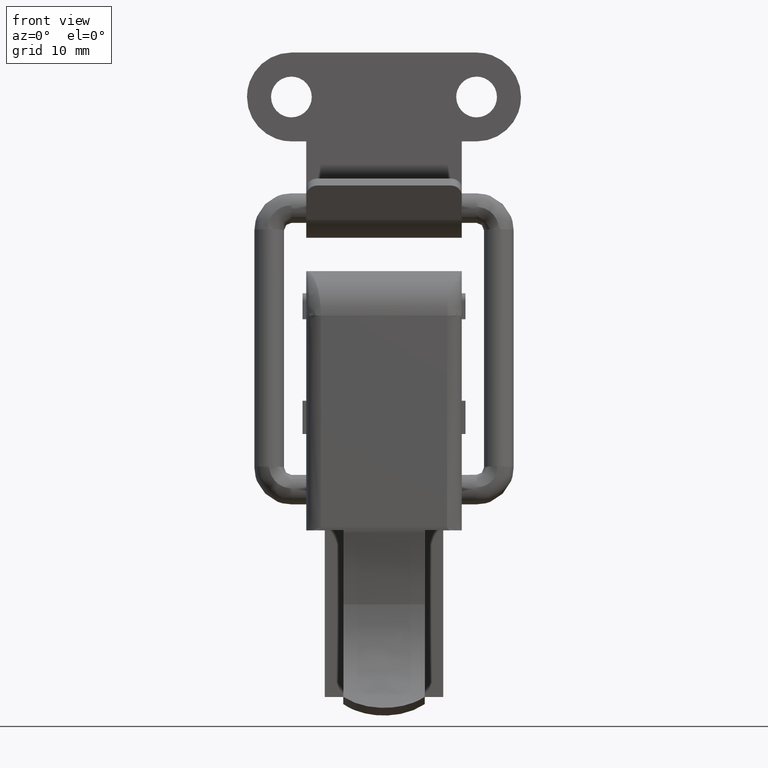
[diagram: clean part render]
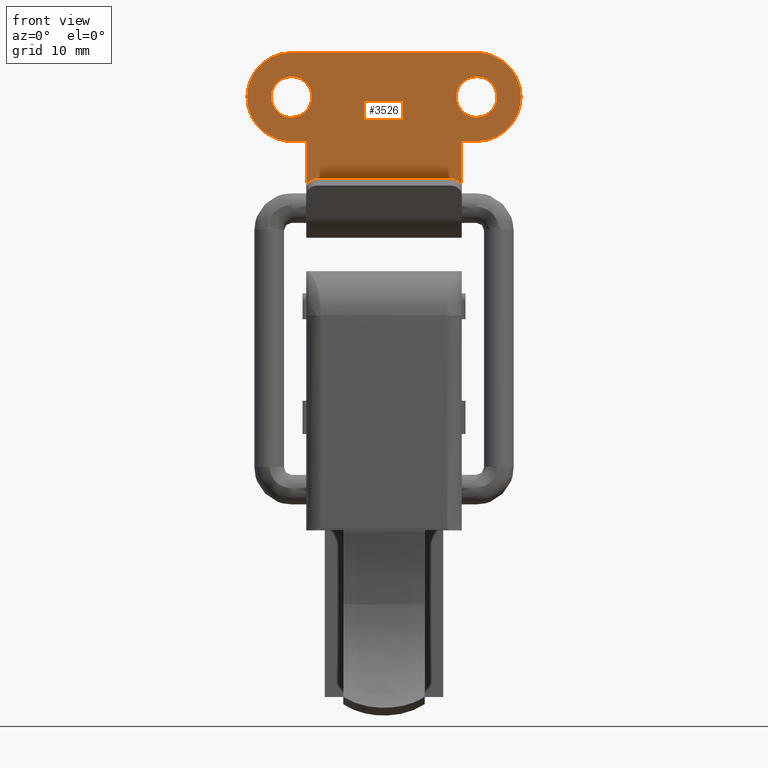
[diagram: same view with one face highlighted and labeled with its STEP entity id]
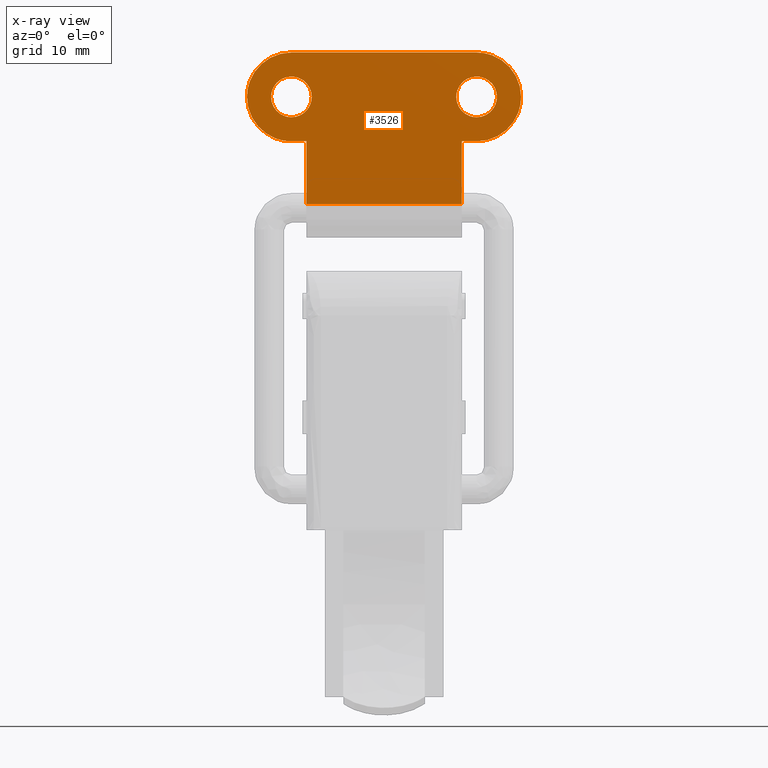
[diagram: x-ray of the same camera — body ghosted, the highlighted face saturated]
A machine part, front view. The second image highlights one B-rep face of the part: STEP entity #3526.
The next image is the same camera in x-ray: the body ghosted, the highlighted face saturated — about 0% of this face is hidden behind the body in this view.
In plain terms, the highlighted face is a freeform B-spline surface patch.
Its self-contained STEP definition (entity closure, byte-faithful):
#2579=CARTESIAN_POINT('',(-14.527512917801120,5.500000000000000,49.142126764848648));
#2580=VERTEX_POINT('',#2579);
#2586=CARTESIAN_POINT('',(-12.500000000000000,5.500000000000000,48.249999999999993));
#2587=VERTEX_POINT('',#2586);
#2588=CARTESIAN_POINT('',(-14.527512917801120,5.500000000000000,49.142126764848648));
#2589=CARTESIAN_POINT('',(-14.375130996242721,5.500000000000018,48.975748198565512));
#2590=CARTESIAN_POINT('',(-14.047312331889369,5.499999999999973,48.696398165860913));
#2591=CARTESIAN_POINT('',(-13.366648295754450,5.500000000000021,48.348115293545838));
#2592=CARTESIAN_POINT('',(-12.832520045756761,5.500000000000004,48.249745312623403));
#2593=CARTESIAN_POINT('',(-12.500000000000000,5.500000000000000,48.249999999999993));
#2594=B_SPLINE_CURVE_WITH_KNOTS('',3,(#2588,#2589,#2590,#2591,#2592,#2593),.UNSPECIFIED.,.F.,.U.,(4,1,1,4),(0.000000032338884,0.676834102682481,1.282406348102786,2.279852435851038),.UNSPECIFIED.);
#2595=EDGE_CURVE('',#2580,#2587,#2594,.T.);
#2597=CARTESIAN_POINT('',(-9.750000000000247,5.500000000000000,51.000001160592653));
#2598=VERTEX_POINT('',#2597);
#2599=CARTESIAN_POINT('',(-12.500000000000000,5.500000000000000,48.249999999999993));
#2600=CARTESIAN_POINT('',(-12.263760865652371,5.500000000000005,48.249929813844417));
#2601=CARTESIAN_POINT('',(-11.802574202319789,5.499999999999975,48.309800825223718));
#2602=CARTESIAN_POINT('',(-11.213223315270840,5.500000000000008,48.545448761982129));
#2603=CARTESIAN_POINT('',(-10.773605108640210,5.499999999999986,48.843197506705451));
#2604=CARTESIAN_POINT('',(-10.430522967274360,5.500000000000023,49.169868266171733));
#2605=CARTESIAN_POINT('',(-10.070715670069250,5.499999999999942,49.648488886146389));
#2606=CARTESIAN_POINT('',(-9.809212095584636,5.500000000000107,50.280025338683153));
#2607=CARTESIAN_POINT('',(-9.749977008975430,5.499999999999909,50.786274796589808));
#2608=CARTESIAN_POINT('',(-9.750000000000247,5.500000000000000,51.000001160592653));
#2609=B_SPLINE_CURVE_WITH_KNOTS('',3,(#2599,#2600,#2601,#2602,#2603,#2604,#2605,#2606,#2607,#2608),.UNSPECIFIED.,.F.,.U.,(4,1,1,1,1,1,1,4),(0.000000109474842,0.708702184831479,1.383669421282279,1.889900809667432,2.294832776649656,2.801058701926042,3.678517842865843,4.319717657050357),.UNSPECIFIED.);
#2610=EDGE_CURVE('',#2587,#2598,#2609,.T.);
#2612=CARTESIAN_POINT('',(-12.500000000000000,5.500000000000000,53.750000000000000));
#2613=VERTEX_POINT('',#2612);
#2614=CARTESIAN_POINT('',(-9.750000000000247,5.500000000000000,51.000001160592653));
#2615=CARTESIAN_POINT('',(-9.749821389689416,5.500000000000004,51.303749990752650));
#2616=CARTESIAN_POINT('',(-9.838505409443988,5.499999999999995,51.832340491173937));
#2617=CARTESIAN_POINT('',(-10.161688349722340,5.500000000000010,52.494388369362113));
#2618=CARTESIAN_POINT('',(-10.606810752612180,5.499999999999994,53.036874320589241));
#2619=CARTESIAN_POINT('',(-11.178190542751009,5.500000000000008,53.449910658039279));
#2620=CARTESIAN_POINT('',(-11.847563435212360,5.500000000000000,53.698605966728472));
#2621=CARTESIAN_POINT('',(-12.286266147149030,5.500000000000010,53.750037625554299));
#2622=CARTESIAN_POINT('',(-12.500000000000000,5.500000000000000,53.750000000000000));
#2623=B_SPLINE_CURVE_WITH_KNOTS('',3,(#2614,#2615,#2616,#2617,#2618,#2619,#2620,#2621,#2622),.UNSPECIFIED.,.F.,.U.,(4,1,1,1,1,1,4),(0.000000109877820,0.911186957502792,1.586156166553327,2.193572490104816,3.003545808103378,3.678516728095198,4.319716348783726),.UNSPECIFIED.);
#2624=EDGE_CURVE('',#2598,#2613,#2623,.T.);
#2626=CARTESIAN_POINT('',(-14.470789898943719,5.500000000000000,52.917937845446460));
#2627=VERTEX_POINT('',#2626);
#2628=CARTESIAN_POINT('',(-12.500000000000000,5.500000000000000,53.750000000000000));
#2629=CARTESIAN_POINT('',(-12.854843145610420,5.500000000000009,53.750393653483343));
#2630=CARTESIAN_POINT('',(-13.335183950624200,5.499999999999990,53.655672380627067));
#2631=CARTESIAN_POINT('',(-13.994413779836879,5.500000000000008,53.332523950711909));
#2632=CARTESIAN_POINT('',(-14.295251336792600,5.500000000000002,53.098434906660401));
#2633=CARTESIAN_POINT('',(-14.470789898943719,5.500000000000000,52.917937845446460));
#2634=B_SPLINE_CURVE_WITH_KNOTS('',3,(#2628,#2629,#2630,#2631,#2632,#2633),.UNSPECIFIED.,.F.,.U.,(4,1,1,4),(0.000000030338377,1.064302019140661,1.441927682589858,2.197232301084928),.UNSPECIFIED.);
#2635=EDGE_CURVE('',#2613,#2627,#2634,.T.);
#2671=CARTESIAN_POINT('',(-15.249999999999760,5.500000000000000,50.999998839407347));
#2672=VERTEX_POINT('',#2671);
#2673=CARTESIAN_POINT('',(-14.470789898943719,5.500000000000000,52.917937845446460));
#2674=CARTESIAN_POINT('',(-14.702295116580229,5.499999999999976,52.680428711014713));
#2675=CARTESIAN_POINT('',(-15.021182805663679,5.500000000000048,52.204328921219812));
#2676=CARTESIAN_POINT('',(-15.220513018024761,5.499999999999951,51.519565782778344));
#2677=CARTESIAN_POINT('',(-15.249999248027500,5.500000000000031,51.143705450220423));
#2678=CARTESIAN_POINT('',(-15.249999999999760,5.500000000000000,50.999998839407347));
#2679=B_SPLINE_CURVE_WITH_KNOTS('',3,(#2673,#2674,#2675,#2676,#2677,#2678),.UNSPECIFIED.,.F.,.U.,(4,1,1,4),(0.000000025531207,0.994918800908036,1.691357002327286,2.122485658950646),.UNSPECIFIED.);
#2680=EDGE_CURVE('',#2627,#2672,#2679,.T.);
#2682=CARTESIAN_POINT('',(-15.249999999999760,5.500000000000000,50.999998839407347));
#2683=CARTESIAN_POINT('',(-15.250077596933830,5.499999999999993,50.766255101851968));
#2684=CARTESIAN_POINT('',(-15.203637673173620,5.500000000000006,50.405080142435899));
#2685=CARTESIAN_POINT('',(-14.986357654460130,5.499999999999991,49.759020388249922));
#2686=CARTESIAN_POINT('',(-14.743058120672231,5.500000000000004,49.376979510662807));
#2687=CARTESIAN_POINT('',(-14.527512917801120,5.500000000000000,49.142126764848648));
#2688=B_SPLINE_CURVE_WITH_KNOTS('',3,(#2682,#2683,#2684,#2685,#2686,#2687),.UNSPECIFIED.,.F.,.U.,(4,1,1,4),(0.000000012313139,0.701215178813573,1.083695605518462,2.039898126882537),.UNSPECIFIED.);
#2689=EDGE_CURVE('',#2672,#2580,#2688,.T.);
#2783=CARTESIAN_POINT('',(10.472487082198880,5.500000000000000,49.142126764848648));
#2784=VERTEX_POINT('',#2783);
#2790=CARTESIAN_POINT('',(12.500000000000000,5.500000000000000,48.249999999999993));
#2791=VERTEX_POINT('',#2790);
#2792=CARTESIAN_POINT('',(10.472487082198880,5.500000000000000,49.142126764848648));
#2793=CARTESIAN_POINT('',(10.600827033760250,5.499999999999998,49.002044401993487));
#2794=CARTESIAN_POINT('',(10.922390173185461,5.500000000000004,48.716906230337443));
#2795=CARTESIAN_POINT('',(11.597722497528119,5.499999999999993,48.354682719093127));
#2796=CARTESIAN_POINT('',(12.167481631216299,5.500000000000006,48.249713538234211));
#2797=CARTESIAN_POINT('',(12.500000000000000,5.500000000000000,48.249999999999993));
#2798=B_SPLINE_CURVE_WITH_KNOTS('',3,(#2792,#2793,#2794,#2795,#2796,#2797),.UNSPECIFIED.,.F.,.U.,(4,1,1,4),(0.000000032334484,0.569963133213006,1.282406348101520,2.279852435851014),.UNSPECIFIED.);
#2799=EDGE_CURVE('',#2784,#2791,#2798,.T.);
#2801=CARTESIAN_POINT('',(15.249999999999760,5.500000000000000,51.000001160592653));
#2802=VERTEX_POINT('',#2801);
#2803=CARTESIAN_POINT('',(12.500000000000000,5.500000000000000,48.249999999999993));
#2804=CARTESIAN_POINT('',(12.736231067694730,5.500000000000005,48.249947203015843));
#2805=CARTESIAN_POINT('',(13.264957693043501,5.500000000000004,48.318470622534562));
#2806=CARTESIAN_POINT('',(13.941958999813790,5.499999999999990,48.618466834709373));
#2807=CARTESIAN_POINT('',(14.449309252367890,5.500000000000008,49.035087551747772));
#2808=CARTESIAN_POINT('',(14.814612808962110,5.499999999999989,49.480190596621071));
#2809=CARTESIAN_POINT('',(15.147239305305600,5.500000000000008,50.111481426391620));
#2810=CARTESIAN_POINT('',(15.250266822537951,5.499999999999980,50.662487356336591));
#2811=CARTESIAN_POINT('',(15.249999999999760,5.500000000000000,51.000001160592653));
#2812=B_SPLINE_CURVE_WITH_KNOTS('',3,(#2803,#2804,#2805,#2806,#2807,#2808,#2809,#2810,#2811),.UNSPECIFIED.,.F.,.U.,(4,1,1,1,1,1,4),(0.000000109475097,0.708702184831283,1.586156646996663,2.193573154702530,2.666071832463320,3.307284449500914,4.319717657050314),.UNSPECIFIED.);
#2813=EDGE_CURVE('',#2791,#2802,#2812,.T.);
#2815=CARTESIAN_POINT('',(12.500000000000000,5.500000000000000,53.750000000000000));
#2816=VERTEX_POINT('',#2815);
#2817=CARTESIAN_POINT('',(15.249999999999760,5.500000000000000,51.000001160592653));
#2818=CARTESIAN_POINT('',(15.250035787560901,5.499999999999981,51.202484159990142));
#2819=CARTESIAN_POINT('',(15.205068789438680,5.500000000000030,51.607439367656738));
#2820=CARTESIAN_POINT('',(14.998942553464870,5.499999999999994,52.206802764923452));
#2821=CARTESIAN_POINT('',(14.671476357462870,5.500000000000002,52.723878317214258));
#2822=CARTESIAN_POINT('',(14.279802402862961,5.500000000000005,53.115494617835168));
#2823=CARTESIAN_POINT('',(13.844300450076741,5.500000000000000,53.418244757618922));
#2824=CARTESIAN_POINT('',(13.264878483521301,5.500000000000000,53.675125035647717));
#2825=CARTESIAN_POINT('',(12.781242929662280,5.500000000000000,53.750144591192502));
#2826=CARTESIAN_POINT('',(12.500000000000000,5.500000000000000,53.750000000000000));
#2827=B_SPLINE_CURVE_WITH_KNOTS('',3,(#2817,#2818,#2819,#2820,#2821,#2822,#2823,#2824,#2825,#2826),.UNSPECIFIED.,.F.,.U.,(4,1,1,1,1,1,1,4),(0.000000109872646,0.607445062422898,1.214921012819016,1.889900237344748,2.429817145090465,2.868553034575553,3.476028772776433,4.319716348783728),.UNSPECIFIED.);
#2828=EDGE_CURVE('',#2802,#2816,#2827,.T.);
#2830=CARTESIAN_POINT('',(10.529210101056281,5.500000000000000,52.917937845446460));
#2831=VERTEX_POINT('',#2830);
#2832=CARTESIAN_POINT('',(12.500000000000000,5.500000000000000,53.750000000000000));
#2833=CARTESIAN_POINT('',(12.202430644841860,5.499999999999998,53.750180476575821));
#2834=CARTESIAN_POINT('',(11.721921938927810,5.500000000000008,53.671186647989387));
#2835=CARTESIAN_POINT('',(11.051166931006410,5.500000000000005,53.368029296785608));
#2836=CARTESIAN_POINT('',(10.704745001365261,5.499999999999987,53.098431243342013));
#2837=CARTESIAN_POINT('',(10.529210101056281,5.500000000000000,52.917937845446460));
#2838=B_SPLINE_CURVE_WITH_KNOTS('',3,(#2832,#2833,#2834,#2835,#2836,#2837),.UNSPECIFIED.,.F.,.U.,(4,1,1,4),(0.000000030336549,0.892632922976256,1.441927682589269,2.197232301084927),.UNSPECIFIED.);
#2839=EDGE_CURVE('',#2816,#2831,#2838,.T.);
#2875=CARTESIAN_POINT('',(9.750000000000247,5.500000000000000,50.999998839407347));
#2876=VERTEX_POINT('',#2875);
#2877=CARTESIAN_POINT('',(10.529210101056281,5.500000000000000,52.917937845446460));
#2878=CARTESIAN_POINT('',(10.328605957656039,5.500000000000005,52.712059652862777));
#2879=CARTESIAN_POINT('',(10.083513375903021,5.500000000000000,52.364596754411807));
#2880=CARTESIAN_POINT('',(9.816473324431719,5.499999999999998,51.707407789209107));
#2881=CARTESIAN_POINT('',(9.749848559639460,5.500000000000011,51.287442715384579));
#2882=CARTESIAN_POINT('',(9.750000000000247,5.500000000000000,50.999998839407347));
#2883=B_SPLINE_CURVE_WITH_KNOTS('',3,(#2877,#2878,#2879,#2880,#2881,#2882),.UNSPECIFIED.,.F.,.U.,(4,1,1,4),(0.000000025537297,0.862266357924242,1.260219326527878,2.122485658950634),.UNSPECIFIED.);
#2884=EDGE_CURVE('',#2831,#2876,#2883,.T.);
#2886=CARTESIAN_POINT('',(9.750000000000247,5.500000000000000,50.999998839407347));
#2887=CARTESIAN_POINT('',(9.749744281488843,5.499999999999999,50.681225709945451));
#2888=CARTESIAN_POINT('',(9.828478302601761,5.500000000000005,50.235188972073537));
#2889=CARTESIAN_POINT('',(10.104737353675670,5.499999999999988,49.612062717463267));
#2890=CARTESIAN_POINT('',(10.314526766582929,5.500000000000020,49.314415987807017));
#2891=CARTESIAN_POINT('',(10.472487082198880,5.500000000000000,49.142126764848648));
#2892=B_SPLINE_CURVE_WITH_KNOTS('',3,(#2886,#2887,#2888,#2889,#2890,#2891),.UNSPECIFIED.,.F.,.U.,(4,1,1,4),(0.000000012313508,0.956202533643367,1.338682960367918,2.039898126882518),.UNSPECIFIED.);
#2893=EDGE_CURVE('',#2876,#2784,#2892,.T.);
#3042=CARTESIAN_POINT('',(-10.500000000000000,5.500000000000200,36.500000000000000));
#3043=VERTEX_POINT('',#3042);
#3062=CARTESIAN_POINT('',(-10.500000000000000,5.500000000000090,45.0));
#3063=VERTEX_POINT('',#3062);
#3064=CARTESIAN_POINT('',(-10.500000000000000,5.500000000000200,36.500000000000000));
#3065=CARTESIAN_POINT('',(-10.500000000000000,5.500000000000090,45.0));
#3066=QUASI_UNIFORM_CURVE('',1,(#3064,#3065),.UNSPECIFIED.,.F.,.U.);
#3067=EDGE_CURVE('',#3043,#3063,#3066,.T.);
#3155=CARTESIAN_POINT('',(10.500000000000000,5.500000000000090,45.0));
#3156=VERTEX_POINT('',#3155);
#3162=CARTESIAN_POINT('',(10.500000000000000,5.500000000000200,36.500000000000000));
#3163=VERTEX_POINT('',#3162);
#3164=CARTESIAN_POINT('',(10.500000000000000,5.500000000000200,36.500000000000000));
#3165=CARTESIAN_POINT('',(10.500000000000000,5.500000000000090,45.0));
#3166=QUASI_UNIFORM_CURVE('',1,(#3164,#3165),.UNSPECIFIED.,.F.,.U.);
#3167=EDGE_CURVE('',#3163,#3156,#3166,.T.);
#3215=CARTESIAN_POINT('',(10.500000000000000,5.500000000000200,36.500000000000000));
#3216=CARTESIAN_POINT('',(-10.500000000000000,5.500000000000200,36.500000000000000));
#3217=QUASI_UNIFORM_CURVE('',1,(#3215,#3216),.UNSPECIFIED.,.F.,.U.);
#3218=EDGE_CURVE('',#3163,#3043,#3217,.T.);
#3415=CARTESIAN_POINT('',(-20.348149928286588,5.500000000000090,58.023974960267033));
#3416=CARTESIAN_POINT('',(20.348150920703919,5.500000000000090,58.023974960267033));
#3417=CARTESIAN_POINT('',(-20.348149928286588,5.500000000000090,35.476024489880132));
#3418=CARTESIAN_POINT('',(20.348150920703919,5.500000000000090,35.476024489880132));
#3419=B_SPLINE_SURFACE_WITH_KNOTS('',1,1,((#3415,#3417),(#3416,#3418)),.UNSPECIFIED.,.F.,.F.,.U.,(2,2),(2,2),(0.0,40.696300848990511),(0.0,22.547950470386901),.UNSPECIFIED.);
#3420=CARTESIAN_POINT('',(-12.500000000000000,5.500000000000000,57.0));
#3421=VERTEX_POINT('',#3420);
#3422=CARTESIAN_POINT('',(12.500000000000000,5.500000000000000,57.0));
#3423=VERTEX_POINT('',#3422);
#3424=CARTESIAN_POINT('',(-12.500000000000000,5.500000000000000,57.0));
#3425=CARTESIAN_POINT('',(12.500000000000000,5.500000000000000,57.0));
#3426=QUASI_UNIFORM_CURVE('',1,(#3424,#3425),.UNSPECIFIED.,.F.,.U.);
#3427=EDGE_CURVE('',#3421,#3423,#3426,.T.);
#3428=ORIENTED_EDGE('',*,*,#3427,.F.);
#3429=CARTESIAN_POINT('',(-18.499999999999790,5.500000000000000,50.999998397633391));
#3430=VERTEX_POINT('',#3429);
#3431=CARTESIAN_POINT('',(-12.500000000000000,5.500000000000000,57.0));
#3432=CARTESIAN_POINT('',(-12.966328762263171,5.500000000000007,57.000085611473622));
#3433=CARTESIAN_POINT('',(-13.948058023593919,5.499999999999988,56.885014905924777));
#3434=CARTESIAN_POINT('',(-15.220994082077370,5.500000000000007,56.403045381867017));
#3435=CARTESIAN_POINT('',(-16.167484819174110,5.499999999999989,55.778761874502280));
#3436=CARTESIAN_POINT('',(-16.896286757604638,5.500000000000032,55.118230364930383));
#3437=CARTESIAN_POINT('',(-17.423939183393600,5.499999999999988,54.467205784367373));
#3438=CARTESIAN_POINT('',(-17.886684986837022,5.499999999999989,53.684214735053622));
#3439=CARTESIAN_POINT('',(-18.345846068596060,5.500000000000057,52.595156593276471));
#3440=CARTESIAN_POINT('',(-18.500331657199990,5.499999999999942,51.638181482464972));
#3441=CARTESIAN_POINT('',(-18.499999999999790,5.500000000000000,50.999998397633391));
#3442=B_SPLINE_CURVE_WITH_KNOTS('',3,(#3431,#3432,#3433,#3434,#3435,#3436,#3437,#3438,#3439,#3440,#3441),.UNSPECIFIED.,.F.,.U.,(4,1,1,1,1,1,1,1,4),(0.000000074470433,1.398985138408709,2.945263298974322,4.049752712917688,4.786028680472469,5.890506169692925,6.553199656815577,7.510424302036266,9.424838000379193),.UNSPECIFIED.);
#3443=EDGE_CURVE('',#3421,#3430,#3442,.T.);
#3444=ORIENTED_EDGE('',*,*,#3443,.T.);
#3445=CARTESIAN_POINT('',(-12.500000000000000,5.500000000000000,45.0));
#3446=VERTEX_POINT('',#3445);
#3447=CARTESIAN_POINT('',(-18.499999999999790,5.500000000000000,50.999998397633391));
#3448=CARTESIAN_POINT('',(-18.500142198446699,5.500000000000008,50.484575582154889));
#3449=CARTESIAN_POINT('',(-18.379080695658509,5.499999999999985,49.551966694999408));
#3450=CARTESIAN_POINT('',(-17.950781918022130,5.500000000000020,48.421175971122260));
#3451=CARTESIAN_POINT('',(-17.400023291939839,5.499999999999969,47.489383646001087));
#3452=CARTESIAN_POINT('',(-16.733163917076968,5.500000000000016,46.696801505259963));
#3453=CARTESIAN_POINT('',(-15.948049538047840,5.500000000000009,46.060548713357790));
#3454=CARTESIAN_POINT('',(-15.055749938282529,5.499999999999940,45.540471150005722));
#3455=CARTESIAN_POINT('',(-13.948023432564041,5.500000000000168,45.120931245794772));
#3456=CARTESIAN_POINT('',(-13.015423431769889,5.499999999999896,44.999849038085472));
#3457=CARTESIAN_POINT('',(-12.500000000000000,5.500000000000000,45.0));
#3458=B_SPLINE_CURVE_WITH_KNOTS('',3,(#3447,#3448,#3449,#3450,#3451,#3452,#3453,#3454,#3455,#3456,#3457),.UNSPECIFIED.,.F.,.U.,(4,1,1,1,1,1,1,1,4),(0.000000075007405,1.546256600332996,2.798005535984085,3.607948077723634,4.786027764611957,5.890505040902916,6.626831472448927,7.878586934111512,9.424836194127376),.UNSPECIFIED.);
#3459=EDGE_CURVE('',#3430,#3446,#3458,.T.);
#3460=ORIENTED_EDGE('',*,*,#3459,.T.);
#3461=CARTESIAN_POINT('',(-10.500000000000000,5.500000000000090,45.0));
#3462=CARTESIAN_POINT('',(-12.500000000000000,5.500000000000000,45.0));
#3463=QUASI_UNIFORM_CURVE('',1,(#3461,#3462),.UNSPECIFIED.,.F.,.U.);
#3464=EDGE_CURVE('',#3063,#3446,#3463,.T.);
#3465=ORIENTED_EDGE('',*,*,#3464,.F.);
#3466=ORIENTED_EDGE('',*,*,#3067,.F.);
#3467=ORIENTED_EDGE('',*,*,#3218,.F.);
#3468=ORIENTED_EDGE('',*,*,#3167,.T.);
#3469=CARTESIAN_POINT('',(12.500000000000000,5.500000000000000,45.0));
#3470=VERTEX_POINT('',#3469);
#3471=CARTESIAN_POINT('',(12.500000000000000,5.500000000000000,45.0));
#3472=CARTESIAN_POINT('',(10.500000000000000,5.500000000000090,45.0));
#3473=QUASI_UNIFORM_CURVE('',1,(#3471,#3472),.UNSPECIFIED.,.F.,.U.);
#3474=EDGE_CURVE('',#3470,#3156,#3473,.T.);
#3475=ORIENTED_EDGE('',*,*,#3474,.F.);
#3476=CARTESIAN_POINT('',(18.499999999999790,5.500000000000000,51.000001602366602));
#3477=VERTEX_POINT('',#3476);
#3478=CARTESIAN_POINT('',(12.500000000000000,5.500000000000000,45.0));
#3479=CARTESIAN_POINT('',(12.819065645791699,5.499999999999997,44.999990323635807));
#3480=CARTESIAN_POINT('',(13.555382389938639,5.500000000000014,45.058824009925722));
#3481=CARTESIAN_POINT('',(14.603620875741910,5.499999999999974,45.341974277363342));
#3482=CARTESIAN_POINT('',(15.533413004652020,5.500000000000036,45.795850713035463));
#3483=CARTESIAN_POINT('',(16.280752244720102,5.499999999999993,46.315371338834090));
#3484=CARTESIAN_POINT('',(17.020077200389998,5.499999999999977,47.002061182149284));
#3485=CARTESIAN_POINT('',(17.637873750481681,5.500000000000019,47.835085017238939));
#3486=CARTESIAN_POINT('',(18.123617473221891,5.499999999999982,48.830377435591473));
#3487=CARTESIAN_POINT('',(18.425035471336340,5.500000000000037,49.846469361983907));
#3488=CARTESIAN_POINT('',(18.500049581355078,5.499999999999953,50.607305021890362));
#3489=CARTESIAN_POINT('',(18.499999999999790,5.500000000000000,51.000001602366602));
#3490=B_SPLINE_CURVE_WITH_KNOTS('',3,(#3478,#3479,#3480,#3481,#3482,#3483,#3484,#3485,#3486,#3487,#3488,#3489),.UNSPECIFIED.,.F.,.U.,(4,1,1,1,1,1,1,1,1,4),(0.000000074480074,0.957206968427565,2.208945829888599,3.239793847992169,4.049752712923851,4.933282997083890,6.258668600530724,7.142260717741125,8.246750874775003,9.424838000379120),.UNSPECIFIED.);
#3491=EDGE_CURVE('',#3470,#3477,#3490,.T.);
#3492=ORIENTED_EDGE('',*,*,#3491,.T.);
#3493=CARTESIAN_POINT('',(18.499999999999790,5.500000000000000,51.000001602366602));
#3494=CARTESIAN_POINT('',(18.500036938074601,5.499999999999997,51.368152658697930));
#3495=CARTESIAN_POINT('',(18.432024715378549,5.500000000000000,52.104450177760462));
#3496=CARTESIAN_POINT('',(18.136394489177761,5.500000000000008,53.147887323616487));
#3497=CARTESIAN_POINT('',(17.704157942333630,5.499999999999991,54.033417552073999));
#3498=CARTESIAN_POINT('',(17.212699455200429,5.500000000000025,54.740349000924823));
#3499=CARTESIAN_POINT('',(16.535722999615849,5.499999999999953,55.487456812824369));
#3500=CARTESIAN_POINT('',(15.689499001278399,5.500000000000017,56.131314866205770));
#3501=CARTESIAN_POINT('',(14.757305958316209,5.500000000000022,56.579068091025519));
#3502=CARTESIAN_POINT('',(13.751657733807420,5.499999999999884,56.904526673074770));
#3503=CARTESIAN_POINT('',(13.015433486032601,5.500000000000128,57.000152313044381));
#3504=CARTESIAN_POINT('',(12.500000000000000,5.500000000000000,57.0));
#3505=B_SPLINE_CURVE_WITH_KNOTS('',3,(#3493,#3494,#3495,#3496,#3497,#3498,#3499,#3500,#3501,#3502,#3503,#3504),.UNSPECIFIED.,.F.,.U.,(4,1,1,1,1,1,1,1,1,4),(0.000000075080411,1.104453470854779,2.208945407004372,3.239793227924583,4.049751936530592,4.786027764648478,6.258667400811731,7.215892541371181,7.878586934123142,9.424836194127002),.UNSPECIFIED.);
#3506=EDGE_CURVE('',#3477,#3423,#3505,.T.);
#3507=ORIENTED_EDGE('',*,*,#3506,.T.);
#3508=EDGE_LOOP('',(#3428,#3444,#3460,#3465,#3466,#3467,#3468,#3475,#3492,#3507));
#3509=FACE_OUTER_BOUND('',#3508,.T.);
#3510=ORIENTED_EDGE('',*,*,#2813,.F.);
#3511=ORIENTED_EDGE('',*,*,#2799,.F.);
#3512=ORIENTED_EDGE('',*,*,#2893,.F.);
#3513=ORIENTED_EDGE('',*,*,#2884,.F.);
#3514=ORIENTED_EDGE('',*,*,#2839,.F.);
#3515=ORIENTED_EDGE('',*,*,#2828,.F.);
#3516=EDGE_LOOP('',(#3510,#3511,#3512,#3513,#3514,#3515));
#3517=FACE_BOUND('',#3516,.T.);
#3518=ORIENTED_EDGE('',*,*,#2610,.F.);
#3519=ORIENTED_EDGE('',*,*,#2595,.F.);
#3520=ORIENTED_EDGE('',*,*,#2689,.F.);
#3521=ORIENTED_EDGE('',*,*,#2680,.F.);
#3522=ORIENTED_EDGE('',*,*,#2635,.F.);
#3523=ORIENTED_EDGE('',*,*,#2624,.F.);
#3524=EDGE_LOOP('',(#3518,#3519,#3520,#3521,#3522,#3523));
#3525=FACE_BOUND('',#3524,.T.);
#3526=ADVANCED_FACE('',(#3509,#3517,#3525),#3419,.F.);